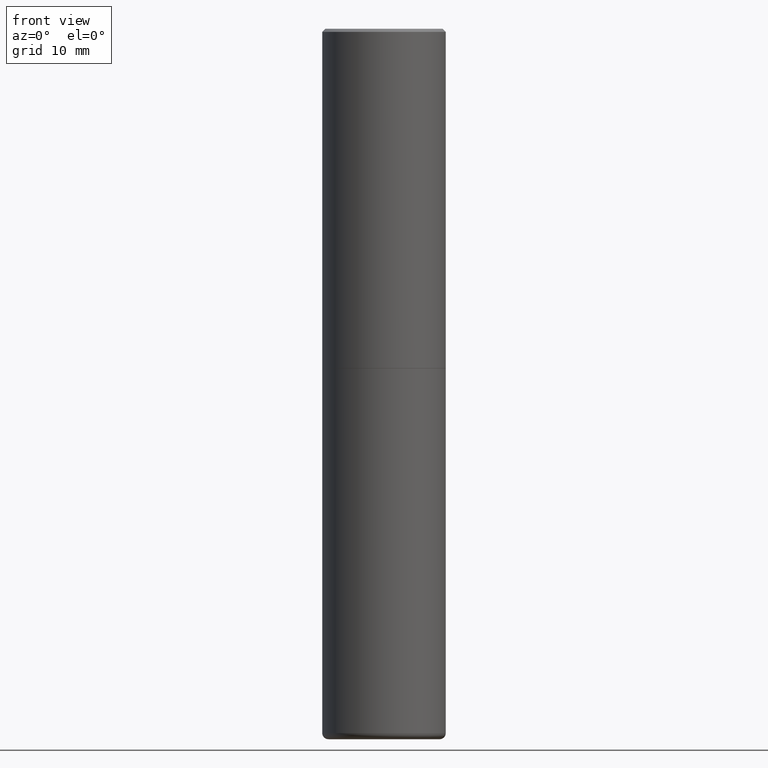
[diagram: clean part render]
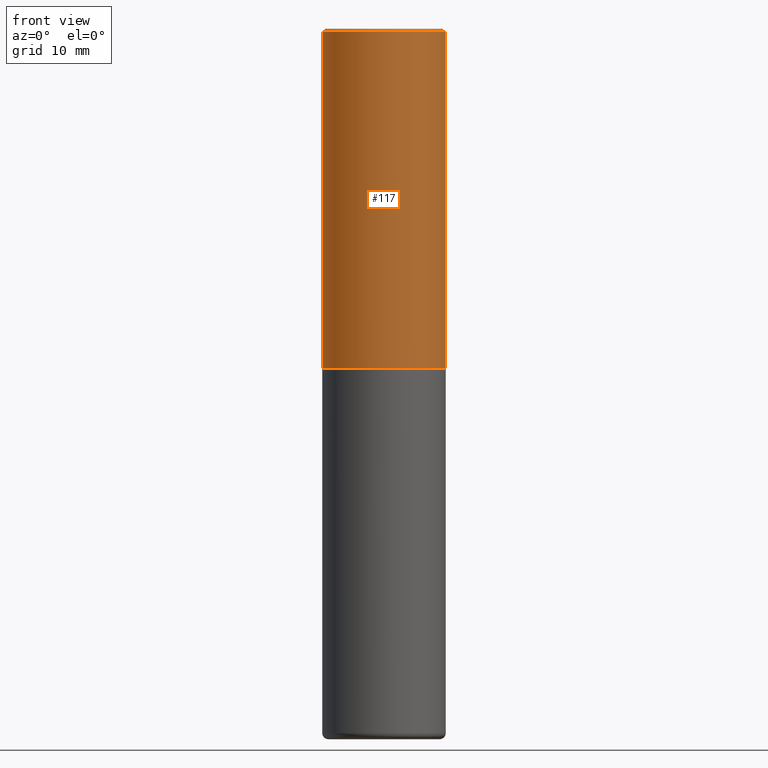
[diagram: same view with one face highlighted and labeled with its STEP entity id]
A machine part, front view. The second image highlights one B-rep face of the part: STEP entity #117.
In plain terms, the highlighted cylindrical surface (partial cylindrical patch) has radius 10 mm, axis along (-0, 0, 1).
Its self-contained STEP definition (entity closure, byte-faithful):
#7 = CIRCLE ( 'NONE', #284, 0.3937000000000000499 ) ;
#15 = ORIENTED_EDGE ( 'NONE', *, *, #38, .T. ) ;
#19 = CARTESIAN_POINT ( 'NONE',  ( -0.3937000000000000499, 2.679362779428219918E-15, -0.02000000000000008715 ) ) ;
#20 = AXIS2_PLACEMENT_3D ( 'NONE', #308, #239, #396 ) ;
#38 = EDGE_CURVE ( 'NONE', #331, #393, #227, .T. ) ;
#39 = VERTEX_POINT ( 'NONE', #19 ) ;
#42 = EDGE_LOOP ( 'NONE', ( #165, #15, #133, #307 ) ) ;
#54 = CARTESIAN_POINT ( 'NONE',  ( 0.3937000000000001609, -2.749192406205084400E-15, 1.919750796630860732E-29 ) ) ;
#58 = VECTOR ( 'NONE', #332, 39.37007874015748143 ) ;
#67 = AXIS2_PLACEMENT_3D ( 'NONE', #180, #300, #138 ) ;
#79 = EDGE_CURVE ( 'NONE', #331, #39, #135, .T. ) ;
#97 = VECTOR ( 'NONE', #402, 39.37007874015748143 ) ;
#117 = ADVANCED_FACE ( 'NONE', ( #263 ), #171, .T. ) ;
#133 = ORIENTED_EDGE ( 'NONE', *, *, #147, .T. ) ;
#135 = LINE ( 'NONE', #140, #97 ) ;
#138 = DIRECTION ( 'NONE',  ( 1.000000000000000000, -6.982962677686269077E-15, 0.000000000000000000 ) ) ;
#140 = CARTESIAN_POINT ( 'NONE',  ( -0.3937000000000001609, 2.797406750687515575E-15, -1.936584745033357296E-29 ) ) ;
#147 = EDGE_CURVE ( 'NONE', #393, #184, #268, .T. ) ;
#162 = DIRECTION ( 'NONE',  ( 1.000000000000000000, -6.982962677686265922E-15, 0.000000000000000000 ) ) ;
#165 = ORIENTED_EDGE ( 'NONE', *, *, #79, .F. ) ;
#171 = CYLINDRICAL_SURFACE ( 'NONE', #20, 0.3937000000000001609 ) ;
#180 = CARTESIAN_POINT ( 'NONE',  ( 5.292972684107107621E-29, -7.556962209792102838E-15, -2.164399999999999658 ) ) ;
#181 = EDGE_CURVE ( 'NONE', #39, #184, #7, .T. ) ;
#184 = VERTEX_POINT ( 'NONE', #224 ) ;
#189 = CARTESIAN_POINT ( 'NONE',  ( 4.890937612370294178E-31, -6.982962677686321191E-17, -0.02000000000000008715 ) ) ;
#224 = CARTESIAN_POINT ( 'NONE',  ( 0.3937000000000000499, -2.770807688499515734E-15, -0.02000000000000008715 ) ) ;
#227 = CIRCLE ( 'NONE', #67, 0.3937000000000002720 ) ;
#235 = CARTESIAN_POINT ( 'NONE',  ( 0.3937000000000002720, -1.030615461599718763E-14, -2.164399999999999658 ) ) ;
#239 = DIRECTION ( 'NONE',  ( -2.445468806185136597E-29, 3.491481338843145583E-15, 1.000000000000000000 ) ) ;
#263 = FACE_OUTER_BOUND ( 'NONE', #42, .T. ) ;
#268 = LINE ( 'NONE', #54, #58 ) ;
#284 = AXIS2_PLACEMENT_3D ( 'NONE', #189, #288, #162 ) ;
#288 = DIRECTION ( 'NONE',  ( -2.445468806185136597E-29, 3.491481338843145583E-15, 1.000000000000000000 ) ) ;
#300 = DIRECTION ( 'NONE',  ( -2.445468806185136597E-29, 3.491481338843145583E-15, 1.000000000000000000 ) ) ;
#302 = CARTESIAN_POINT ( 'NONE',  ( -0.3937000000000003830, -1.015989167596963746E-15, -2.164399999999999658 ) ) ;
#307 = ORIENTED_EDGE ( 'NONE', *, *, #181, .F. ) ;
#308 = CARTESIAN_POINT ( 'NONE',  ( 0.000000000000000000, 0.000000000000000000, 0.000000000000000000 ) ) ;
#331 = VERTEX_POINT ( 'NONE', #302 ) ;
#332 = DIRECTION ( 'NONE',  ( -2.445468806185136877E-29, 3.491481338843145188E-15, 1.000000000000000000 ) ) ;
#393 = VERTEX_POINT ( 'NONE', #235 ) ;
#396 = DIRECTION ( 'NONE',  ( 1.000000000000000000, -6.982962677686266711E-15, 4.876176775795935793E-29 ) ) ;
#402 = DIRECTION ( 'NONE',  ( -2.445468806185136877E-29, 3.491481338843145188E-15, 1.000000000000000000 ) ) ;